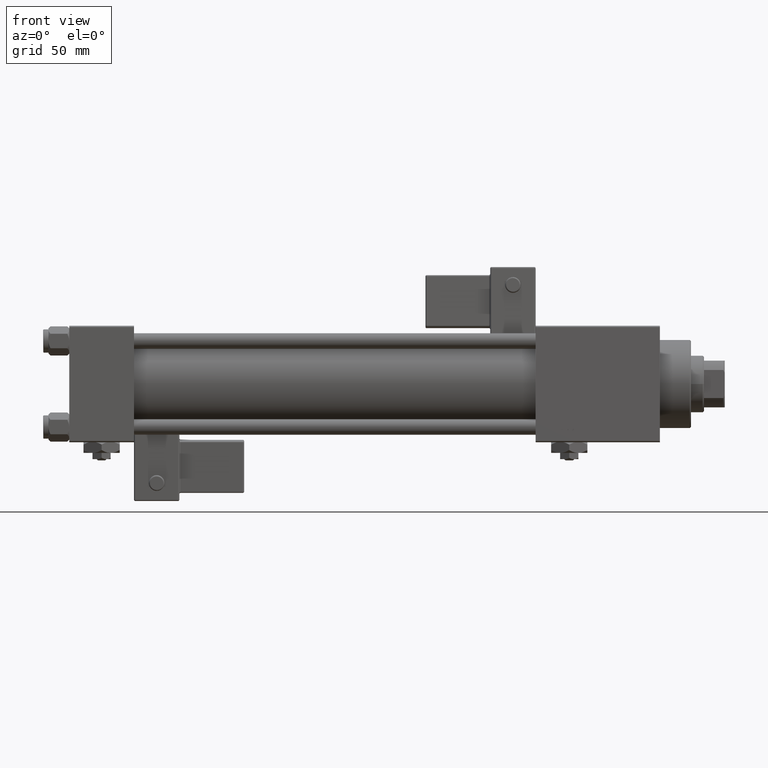
[diagram: clean part render]
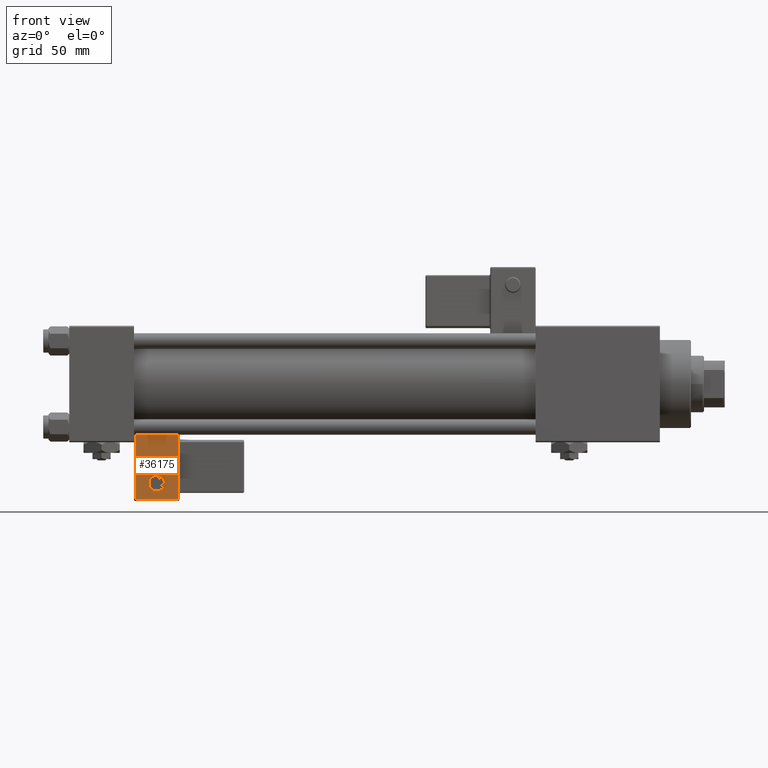
[diagram: same view with one face highlighted and labeled with its STEP entity id]
A machine part, front view. The second image highlights one B-rep face of the part: STEP entity #36175.
In plain terms, the highlighted planar face has unit normal (0, 0.9994, 0.0353).
Its self-contained STEP definition (entity closure, byte-faithful):
#1401 = LINE ( 'NONE', #44277, #55209 ) ;
#4169 = DIRECTION ( 'NONE',  ( -1.334402673828313093E-16, 0.000000000000000000, -1.000000000000000000 ) ) ;
#4949 = ORIENTED_EDGE ( 'NONE', *, *, #14653, .F. ) ;
#5290 = CIRCLE ( 'NONE', #8920, 2.999999999999999112 ) ;
#5914 = DIRECTION ( 'NONE',  ( 1.000000000000000000, 0.000000000000000000, 0.000000000000000000 ) ) ;
#7357 = VERTEX_POINT ( 'NONE', #31288 ) ;
#7691 = LINE ( 'NONE', #37593, #8470 ) ;
#8470 = VECTOR ( 'NONE', #17007, 1000.000000000000000 ) ;
#8920 = AXIS2_PLACEMENT_3D ( 'NONE', #47626, #51865, #55826 ) ;
#9291 = EDGE_LOOP ( 'NONE', ( #4949, #41066 ) ) ;
#13396 = VECTOR ( 'NONE', #4169, 1000.000000000000000 ) ;
#14653 = EDGE_CURVE ( 'NONE', #35594, #15053, #5290, .T. ) ;
#15053 = VERTEX_POINT ( 'NONE', #39101 ) ;
#15448 = DIRECTION ( 'NONE',  ( -0.000000000000000000, -1.000000000000000000, -0.000000000000000000 ) ) ;
#17007 = DIRECTION ( 'NONE',  ( -1.000000000000000000, 0.000000000000000000, 1.982541115402065110E-16 ) ) ;
#18723 = DIRECTION ( 'NONE',  ( 0.000000000000000000, 1.000000000000000000, 0.000000000000000000 ) ) ;
#20134 = VECTOR ( 'NONE', #28118, 1000.000000000000000 ) ;
#21142 = ORIENTED_EDGE ( 'NONE', *, *, #28328, .T. ) ;
#21348 = CARTESIAN_POINT ( 'NONE',  ( -8.250000000000000000, -33.75000000000000000, 24.50000000000000355 ) ) ;
#21479 = AXIS2_PLACEMENT_3D ( 'NONE', #52583, #18723, #35657 ) ;
#22117 = PLANE ( 'NONE',  #21479 ) ;
#24445 = EDGE_CURVE ( 'NONE', #15053, #35594, #28979, .T. ) ;
#24450 = DIRECTION ( 'NONE',  ( 0.000000000000000000, 0.000000000000000000, 1.000000000000000000 ) ) ;
#24882 = ORIENTED_EDGE ( 'NONE', *, *, #51223, .T. ) ;
#25595 = CARTESIAN_POINT ( 'NONE',  ( -8.250000000000003553, -33.75000000000000000, 1.100882205908358788E-15 ) ) ;
#28118 = DIRECTION ( 'NONE',  ( -1.334402673828313339E-16, 0.000000000000000000, 1.000000000000000000 ) ) ;
#28328 = EDGE_CURVE ( 'NONE', #35282, #7357, #45617, .T. ) ;
#28400 = CARTESIAN_POINT ( 'NONE',  ( 8.250000000000003553, -33.75000000000000000, 1.100882205908358986E-15 ) ) ;
#28979 = CIRCLE ( 'NONE', #53315, 2.999999999999999112 ) ;
#31288 = CARTESIAN_POINT ( 'NONE',  ( 8.250000000000000000, -33.75000000000000000, 24.50000000000000000 ) ) ;
#33426 = FACE_OUTER_BOUND ( 'NONE', #40082, .T. ) ;
#35282 = VERTEX_POINT ( 'NONE', #35304 ) ;
#35304 = CARTESIAN_POINT ( 'NONE',  ( 8.250000000000003553, -33.75000000000000000, -0.5000000000000002220 ) ) ;
#35383 = FACE_BOUND ( 'NONE', #9291, .T. ) ;
#35594 = VERTEX_POINT ( 'NONE', #46827 ) ;
#35657 = DIRECTION ( 'NONE',  ( 0.000000000000000000, -0.000000000000000000, 1.000000000000000000 ) ) ;
#35790 = EDGE_CURVE ( 'NONE', #38445, #53473, #47031, .T. ) ;
#36175 = ADVANCED_FACE ( 'NONE', ( #33426, #35383 ), #22117, .F. ) ;
#36880 = CARTESIAN_POINT ( 'NONE',  ( -4.336808689942017736E-16, -33.75000000000000000, 6.000000000000001776 ) ) ;
#37482 = CARTESIAN_POINT ( 'NONE',  ( -8.250000000000003553, -33.75000000000000000, -0.5000000000000002220 ) ) ;
#37593 = CARTESIAN_POINT ( 'NONE',  ( 4.857225732735059864E-15, -33.75000000000000000, 24.50000000000000000 ) ) ;
#38445 = VERTEX_POINT ( 'NONE', #21348 ) ;
#39101 = CARTESIAN_POINT ( 'NONE',  ( -6.628682924999581145E-17, -33.75000000000000000, 3.000000000000001776 ) ) ;
#40082 = EDGE_LOOP ( 'NONE', ( #24882, #42816, #45345, #21142 ) ) ;
#41066 = ORIENTED_EDGE ( 'NONE', *, *, #24445, .F. ) ;
#42816 = ORIENTED_EDGE ( 'NONE', *, *, #35790, .T. ) ;
#44277 = CARTESIAN_POINT ( 'NONE',  ( 0.000000000000000000, -33.75000000000000000, -0.5000000000000002220 ) ) ;
#45345 = ORIENTED_EDGE ( 'NONE', *, *, #48841, .T. ) ;
#45617 = LINE ( 'NONE', #28400, #20134 ) ;
#46827 = CARTESIAN_POINT ( 'NONE',  ( -4.336808689942017736E-16, -33.75000000000000000, 9.000000000000001776 ) ) ;
#47031 = LINE ( 'NONE', #25595, #13396 ) ;
#47626 = CARTESIAN_POINT ( 'NONE',  ( -4.336808689942017736E-16, -33.75000000000000000, 6.000000000000001776 ) ) ;
#48841 = EDGE_CURVE ( 'NONE', #53473, #35282, #1401, .T. ) ;
#51223 = EDGE_CURVE ( 'NONE', #7357, #38445, #7691, .T. ) ;
#51865 = DIRECTION ( 'NONE',  ( -0.000000000000000000, -1.000000000000000000, -0.000000000000000000 ) ) ;
#52583 = CARTESIAN_POINT ( 'NONE',  ( 0.000000000000000000, -33.75000000000000000, 0.000000000000000000 ) ) ;
#53315 = AXIS2_PLACEMENT_3D ( 'NONE', #36880, #15448, #24450 ) ;
#53473 = VERTEX_POINT ( 'NONE', #37482 ) ;
#55209 = VECTOR ( 'NONE', #5914, 1000.000000000000000 ) ;
#55826 = DIRECTION ( 'NONE',  ( 0.000000000000000000, 0.000000000000000000, 1.000000000000000000 ) ) ;